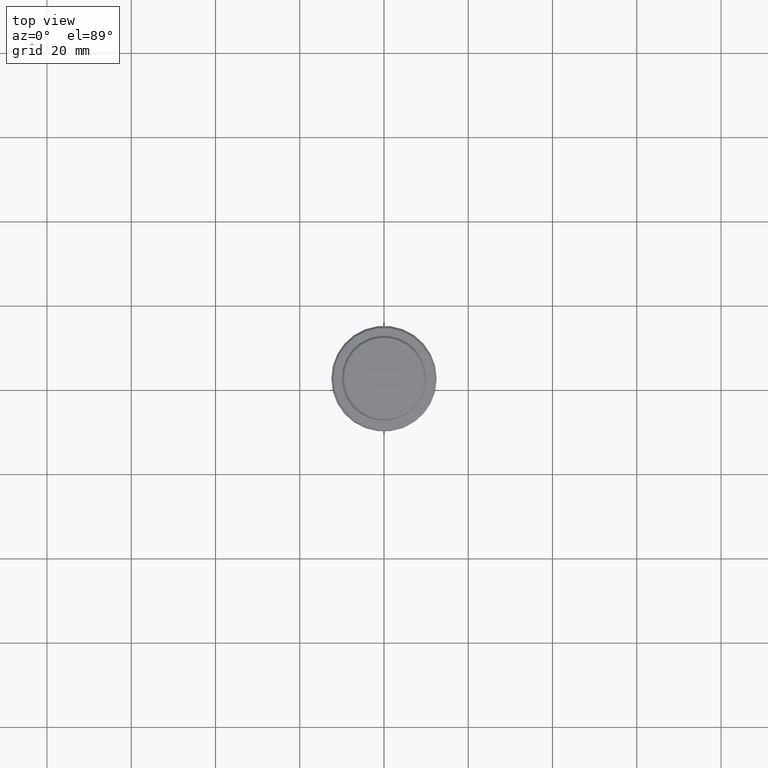
[diagram: clean part render]
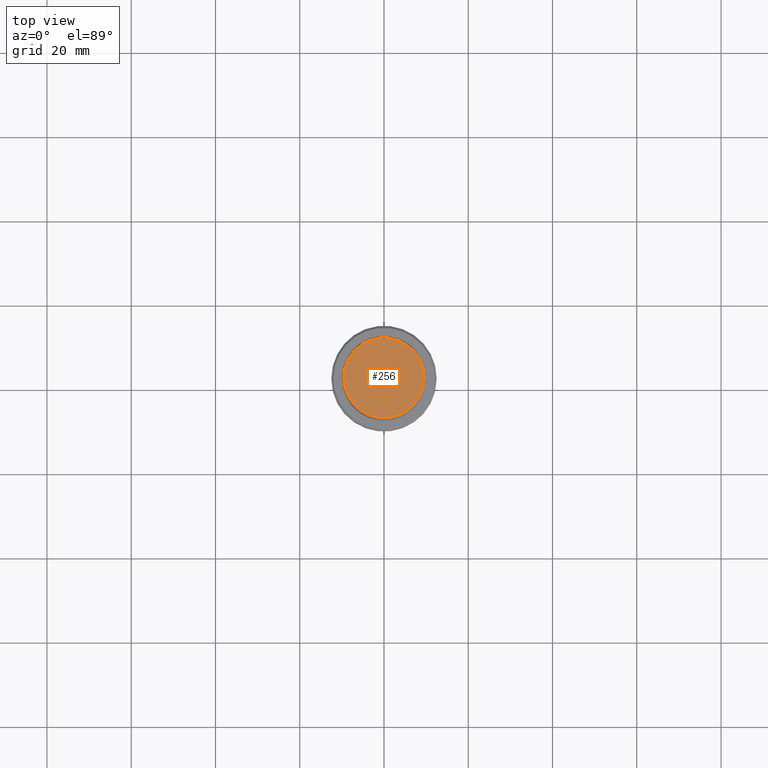
[diagram: same view with one face highlighted and labeled with its STEP entity id]
A machine part, top view. The second image highlights one B-rep face of the part: STEP entity #256.
In plain terms, the highlighted planar face has unit normal (0, -0, 1).
Its self-contained STEP definition (entity closure, byte-faithful):
#25 = DIRECTION ( 'NONE',  ( 0.000000000000000000, -0.000000000000000000, 1.000000000000000000 ) ) ;
#64 = DIRECTION ( 'NONE',  ( -0.000000000000000000, -0.000000000000000000, 1.000000000000000000 ) ) ;
#69 = EDGE_LOOP ( 'NONE', ( #165, #1033 ) ) ;
#88 = AXIS2_PLACEMENT_3D ( 'NONE', #641, #738, #1400 ) ;
#127 = PLANE ( 'NONE',  #1310 ) ;
#165 = ORIENTED_EDGE ( 'NONE', *, *, #1009, .T. ) ;
#229 = CIRCLE ( 'NONE', #88, 9.500000000000035527 ) ;
#232 = CARTESIAN_POINT ( 'NONE',  ( 0.000000000000000000, 0.000000000000000000, 0.000000000000000000 ) ) ;
#256 = ADVANCED_FACE ( 'NONE', ( #1218 ), #127, .T. ) ;
#433 = VERTEX_POINT ( 'NONE', #689 ) ;
#500 = DIRECTION ( 'NONE',  ( 1.000000000000000000, 0.000000000000000000, 0.000000000000000000 ) ) ;
#641 = CARTESIAN_POINT ( 'NONE',  ( 0.000000000000000000, 0.000000000000000000, 0.000000000000000000 ) ) ;
#677 = VERTEX_POINT ( 'NONE', #860 ) ;
#689 = CARTESIAN_POINT ( 'NONE',  ( 9.500000000000035527, 1.194030629168671442E-15, 0.000000000000000000 ) ) ;
#738 = DIRECTION ( 'NONE',  ( -0.000000000000000000, -0.000000000000000000, 1.000000000000000000 ) ) ;
#743 = AXIS2_PLACEMENT_3D ( 'NONE', #1046, #64, #500 ) ;
#860 = CARTESIAN_POINT ( 'NONE',  ( -9.500000000000035527, 0.000000000000000000, 0.000000000000000000 ) ) ;
#978 = EDGE_CURVE ( 'NONE', #433, #677, #1361, .T. ) ;
#1004 = DIRECTION ( 'NONE',  ( 1.000000000000000000, 0.000000000000000000, 0.000000000000000000 ) ) ;
#1009 = EDGE_CURVE ( 'NONE', #677, #433, #229, .T. ) ;
#1033 = ORIENTED_EDGE ( 'NONE', *, *, #978, .T. ) ;
#1046 = CARTESIAN_POINT ( 'NONE',  ( 0.000000000000000000, 0.000000000000000000, 0.000000000000000000 ) ) ;
#1218 = FACE_OUTER_BOUND ( 'NONE', #69, .T. ) ;
#1310 = AXIS2_PLACEMENT_3D ( 'NONE', #232, #25, #1004 ) ;
#1361 = CIRCLE ( 'NONE', #743, 9.500000000000035527 ) ;
#1400 = DIRECTION ( 'NONE',  ( 1.000000000000000000, 0.000000000000000000, 0.000000000000000000 ) ) ;